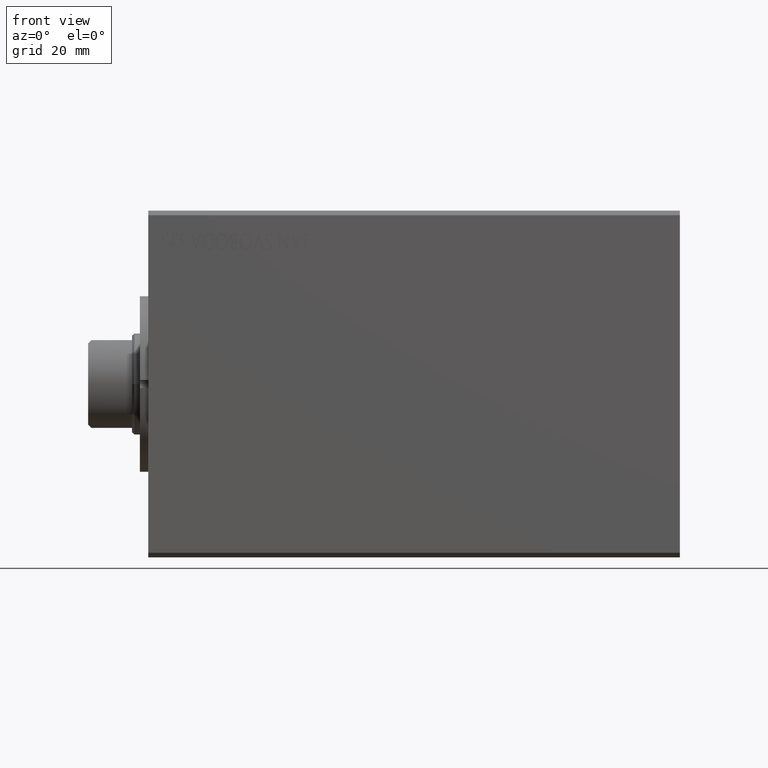
[diagram: clean part render]
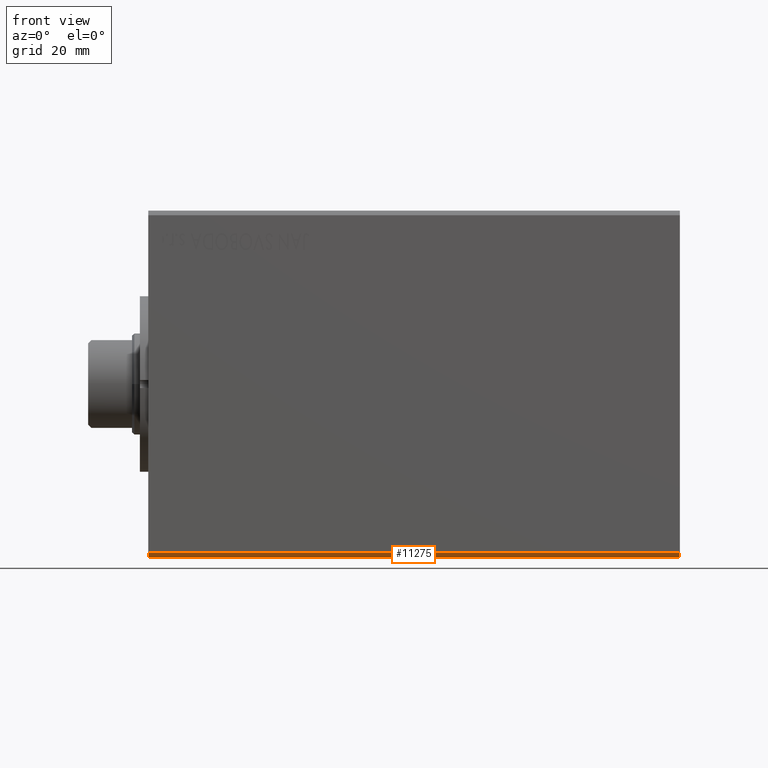
[diagram: same view with one face highlighted and labeled with its STEP entity id]
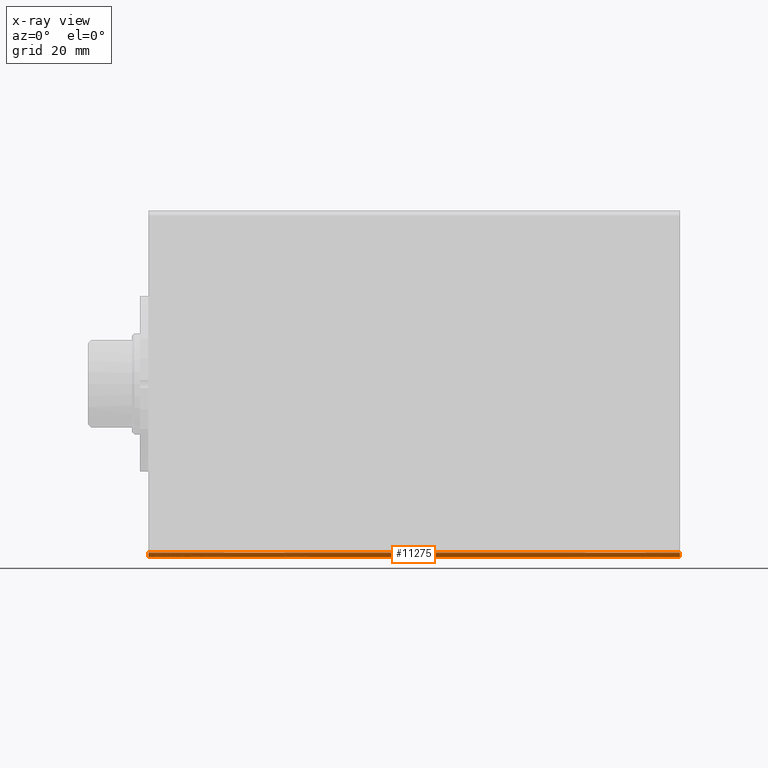
[diagram: x-ray of the same camera — body ghosted, the highlighted face saturated]
A machine part, front view. The second image highlights one B-rep face of the part: STEP entity #11275.
The next image is the same camera in x-ray: the body ghosted, the highlighted face saturated — about 0% of this face is hidden behind the body in this view.
In plain terms, the highlighted planar face has unit normal (0, 0.7071, 0.7071).
Its self-contained STEP definition (entity closure, byte-faithful):
#310 = CARTESIAN_POINT ( 'NONE',  ( 0.000000000000000000, -26.50000000000000355, -37.49999999999999289 ) ) ;
#1375 = DIRECTION ( 'NONE',  ( -0.000000000000000000, 0.7071067811865500152, 0.7071067811865450192 ) ) ;
#4082 = VECTOR ( 'NONE', #39534, 1000.000000000000114 ) ;
#4648 = EDGE_LOOP ( 'NONE', ( #28782, #43344, #35536, #11472 ) ) ;
#7636 = CARTESIAN_POINT ( 'NONE',  ( 115.0000000000000000, -27.50000000000000355, -36.49999999999998579 ) ) ;
#7872 = FACE_OUTER_BOUND ( 'NONE', #4648, .T. ) ;
#8081 = CARTESIAN_POINT ( 'NONE',  ( 115.0000000000000000, -27.50000000000000355, -36.49999999999998579 ) ) ;
#8706 = CARTESIAN_POINT ( 'NONE',  ( 0.000000000000000000, -27.50000000000000355, -36.49999999999998579 ) ) ;
#8823 = VERTEX_POINT ( 'NONE', #310 ) ;
#9806 = AXIS2_PLACEMENT_3D ( 'NONE', #7636, #1375, #21052 ) ;
#10490 = CARTESIAN_POINT ( 'NONE',  ( 115.0000000000000000, -27.50000000000000355, -36.49999999999998579 ) ) ;
#10616 = VECTOR ( 'NONE', #28193, 1000.000000000000114 ) ;
#11275 = ADVANCED_FACE ( 'NONE', ( #7872 ), #42042, .F. ) ;
#11472 = ORIENTED_EDGE ( 'NONE', *, *, #17574, .T. ) ;
#11632 = EDGE_CURVE ( 'NONE', #14537, #8823, #12060, .T. ) ;
#12060 = LINE ( 'NONE', #8706, #4082 ) ;
#14537 = VERTEX_POINT ( 'NONE', #16247 ) ;
#14896 = VECTOR ( 'NONE', #15445, 1000.000000000000000 ) ;
#15445 = DIRECTION ( 'NONE',  ( -1.000000000000000000, -0.000000000000000000, -0.000000000000000000 ) ) ;
#16247 = CARTESIAN_POINT ( 'NONE',  ( 0.000000000000000000, -27.50000000000000355, -36.49999999999998579 ) ) ;
#17574 = EDGE_CURVE ( 'NONE', #17685, #14537, #31543, .T. ) ;
#17685 = VERTEX_POINT ( 'NONE', #10490 ) ;
#19379 = EDGE_CURVE ( 'NONE', #17685, #30964, #41602, .T. ) ;
#21052 = DIRECTION ( 'NONE',  ( 0.000000000000000000, -0.7071067811865450192, 0.7071067811865500152 ) ) ;
#25483 = LINE ( 'NONE', #32420, #14896 ) ;
#28193 = DIRECTION ( 'NONE',  ( 0.000000000000000000, 0.7071067811865451302, -0.7071067811865500152 ) ) ;
#28782 = ORIENTED_EDGE ( 'NONE', *, *, #11632, .T. ) ;
#30964 = VERTEX_POINT ( 'NONE', #41176 ) ;
#31275 = EDGE_CURVE ( 'NONE', #30964, #8823, #25483, .T. ) ;
#31543 = LINE ( 'NONE', #8081, #34844 ) ;
#31760 = DIRECTION ( 'NONE',  ( -1.000000000000000000, -0.000000000000000000, -0.000000000000000000 ) ) ;
#31774 = CARTESIAN_POINT ( 'NONE',  ( 115.0000000000000000, -27.50000000000000355, -36.49999999999998579 ) ) ;
#32420 = CARTESIAN_POINT ( 'NONE',  ( 115.0000000000000000, -26.50000000000000355, -37.49999999999999289 ) ) ;
#34844 = VECTOR ( 'NONE', #31760, 1000.000000000000000 ) ;
#35536 = ORIENTED_EDGE ( 'NONE', *, *, #19379, .F. ) ;
#39534 = DIRECTION ( 'NONE',  ( 0.000000000000000000, 0.7071067811865451302, -0.7071067811865500152 ) ) ;
#41176 = CARTESIAN_POINT ( 'NONE',  ( 115.0000000000000000, -26.50000000000000355, -37.49999999999999289 ) ) ;
#41602 = LINE ( 'NONE', #31774, #10616 ) ;
#42042 = PLANE ( 'NONE',  #9806 ) ;
#43344 = ORIENTED_EDGE ( 'NONE', *, *, #31275, .F. ) ;